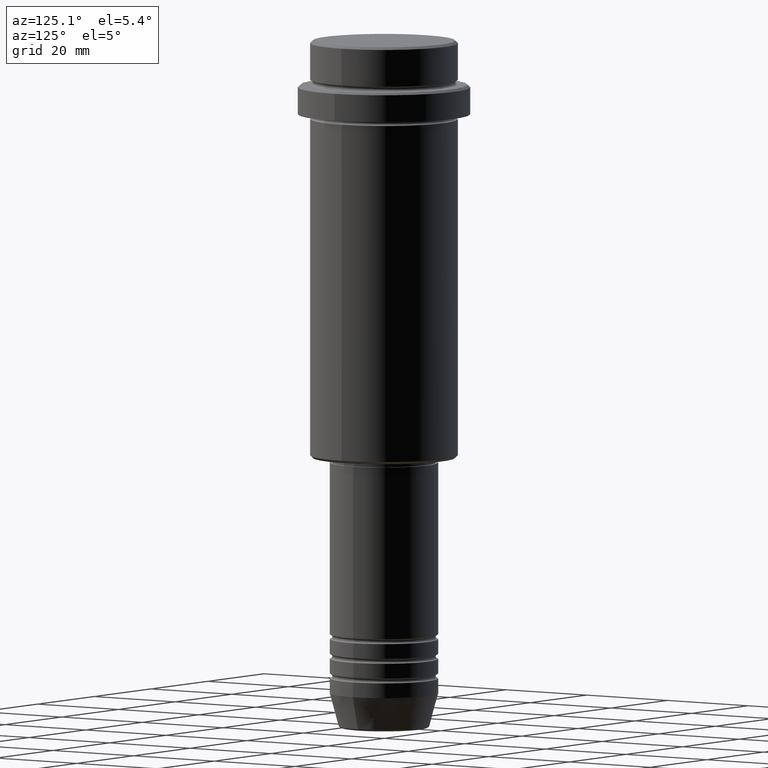
[diagram: clean part render]
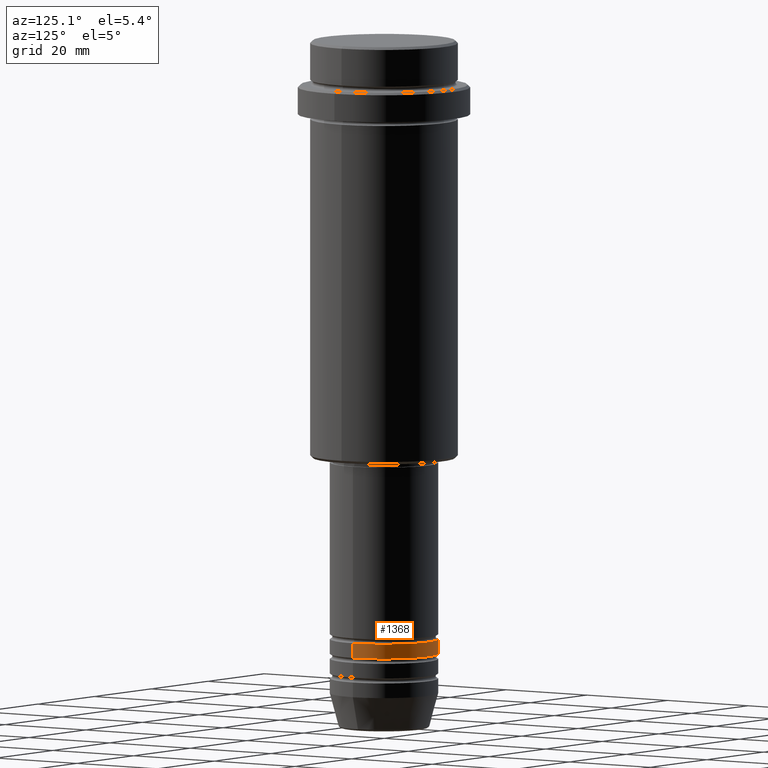
[diagram: same view with one face highlighted and labeled with its STEP entity id]
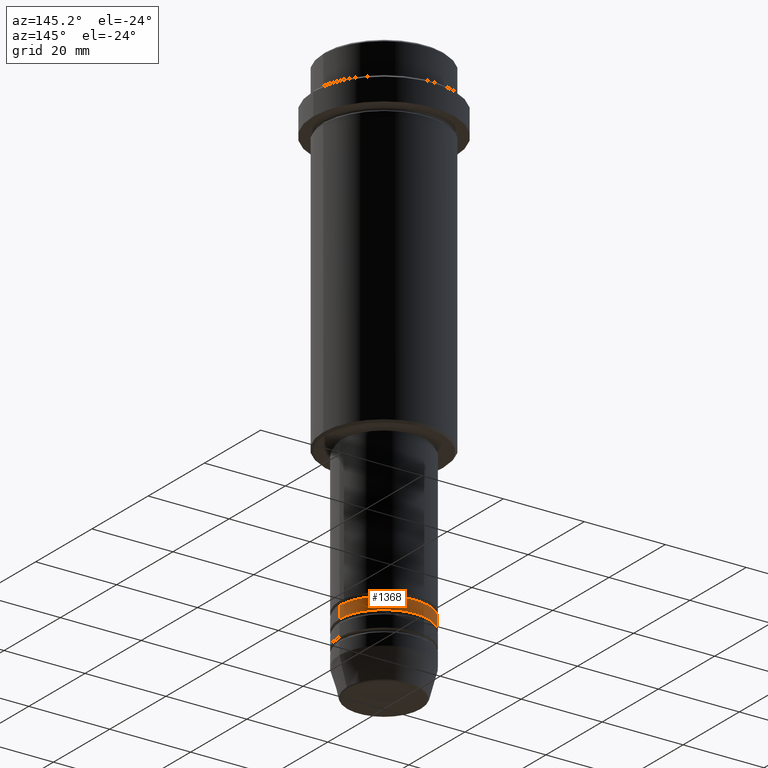
[diagram: same view with one face highlighted and labeled with its STEP entity id]
A machine part, auxiliary view. The second image highlights one B-rep face of the part: STEP entity #1368.
A second angle (auxiliary view) of the same face is appended — the face is thin or edge-on in the first view.
In plain terms, the highlighted cylindrical surface (partial cylindrical patch) has radius 11 mm, axis along (-0, -0, 1).
Its self-contained STEP definition (entity closure, byte-faithful):
#25 = LINE ( 'NONE', #1242, #811 ) ;
#86 = ORIENTED_EDGE ( 'NONE', *, *, #803, .F. ) ;
#102 = CYLINDRICAL_SURFACE ( 'NONE', #1349, 11.00000000000000000 ) ;
#107 = AXIS2_PLACEMENT_3D ( 'NONE', #759, #864, #619 ) ;
#188 = CARTESIAN_POINT ( 'NONE',  ( 0.000000000000000000, 0.000000000000000000, -121.9999999999999005 ) ) ;
#211 = CARTESIAN_POINT ( 'NONE',  ( 0.000000000000000000, 0.000000000000000000, 0.000000000000000000 ) ) ;
#245 = LINE ( 'NONE', #1109, #832 ) ;
#325 = CARTESIAN_POINT ( 'NONE',  ( -11.00000000000000000, 1.347111479062088405E-15, -121.9999999999999005 ) ) ;
#340 = VERTEX_POINT ( 'NONE', #1062 ) ;
#345 = ORIENTED_EDGE ( 'NONE', *, *, #1324, .T. ) ;
#438 = CIRCLE ( 'NONE', #1232, 11.00000000000000000 ) ;
#444 = DIRECTION ( 'NONE',  ( 1.000000000000000000, 0.000000000000000000, 0.000000000000000000 ) ) ;
#473 = DIRECTION ( 'NONE',  ( -0.000000000000000000, -0.000000000000000000, 1.000000000000000000 ) ) ;
#499 = ORIENTED_EDGE ( 'NONE', *, *, #887, .F. ) ;
#531 = VERTEX_POINT ( 'NONE', #709 ) ;
#558 = DIRECTION ( 'NONE',  ( -0.000000000000000000, -0.000000000000000000, 1.000000000000000000 ) ) ;
#619 = DIRECTION ( 'NONE',  ( 1.000000000000000000, 0.000000000000000000, 0.000000000000000000 ) ) ;
#647 = DIRECTION ( 'NONE',  ( -0.000000000000000000, -0.000000000000000000, 1.000000000000000000 ) ) ;
#687 = ORIENTED_EDGE ( 'NONE', *, *, #846, .T. ) ;
#709 = CARTESIAN_POINT ( 'NONE',  ( -11.00000000000000000, 1.347111479062088405E-15, -124.9999999999999005 ) ) ;
#720 = CIRCLE ( 'NONE', #107, 11.00000000000000000 ) ;
#759 = CARTESIAN_POINT ( 'NONE',  ( 0.000000000000000000, 0.000000000000000000, -124.9999999999999005 ) ) ;
#803 = EDGE_CURVE ( 'NONE', #340, #1170, #438, .T. ) ;
#811 = VECTOR ( 'NONE', #473, 1000.000000000000000 ) ;
#832 = VECTOR ( 'NONE', #558, 1000.000000000000000 ) ;
#846 = EDGE_CURVE ( 'NONE', #920, #531, #720, .T. ) ;
#864 = DIRECTION ( 'NONE',  ( -0.000000000000000000, -0.000000000000000000, 1.000000000000000000 ) ) ;
#887 = EDGE_CURVE ( 'NONE', #920, #340, #25, .T. ) ;
#920 = VERTEX_POINT ( 'NONE', #1113 ) ;
#957 = DIRECTION ( 'NONE',  ( 1.000000000000000000, 0.000000000000000000, 0.000000000000000000 ) ) ;
#996 = DIRECTION ( 'NONE',  ( -0.000000000000000000, -0.000000000000000000, 1.000000000000000000 ) ) ;
#1050 = EDGE_LOOP ( 'NONE', ( #687, #345, #86, #499 ) ) ;
#1062 = CARTESIAN_POINT ( 'NONE',  ( 11.00000000000000000, 0.000000000000000000, -121.9999999999999005 ) ) ;
#1109 = CARTESIAN_POINT ( 'NONE',  ( -11.00000000000000000, 1.347111479062088405E-15, 0.000000000000000000 ) ) ;
#1113 = CARTESIAN_POINT ( 'NONE',  ( 11.00000000000000000, 0.000000000000000000, -124.9999999999999005 ) ) ;
#1170 = VERTEX_POINT ( 'NONE', #325 ) ;
#1232 = AXIS2_PLACEMENT_3D ( 'NONE', #188, #647, #957 ) ;
#1242 = CARTESIAN_POINT ( 'NONE',  ( 11.00000000000000000, 0.000000000000000000, 0.000000000000000000 ) ) ;
#1312 = FACE_OUTER_BOUND ( 'NONE', #1050, .T. ) ;
#1324 = EDGE_CURVE ( 'NONE', #531, #1170, #245, .T. ) ;
#1349 = AXIS2_PLACEMENT_3D ( 'NONE', #211, #996, #444 ) ;
#1368 = ADVANCED_FACE ( 'NONE', ( #1312 ), #102, .T. ) ;